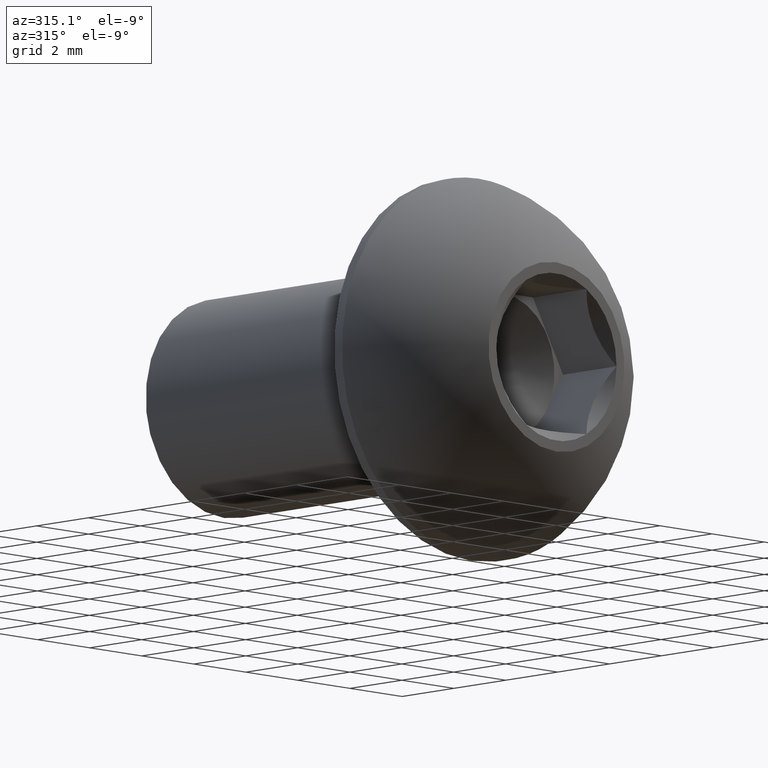
[diagram: clean part render]
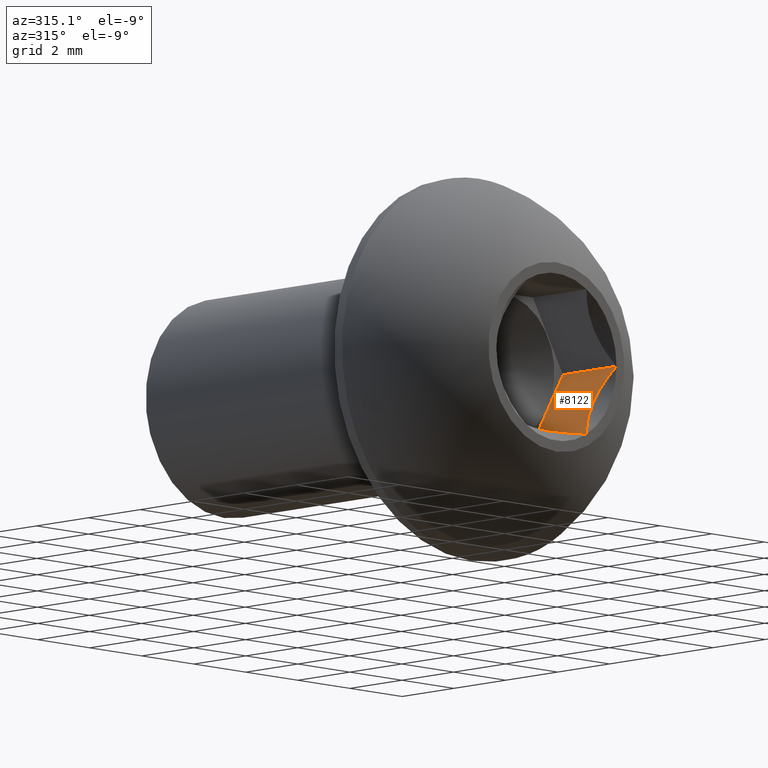
[diagram: same view with one face highlighted and labeled with its STEP entity id]
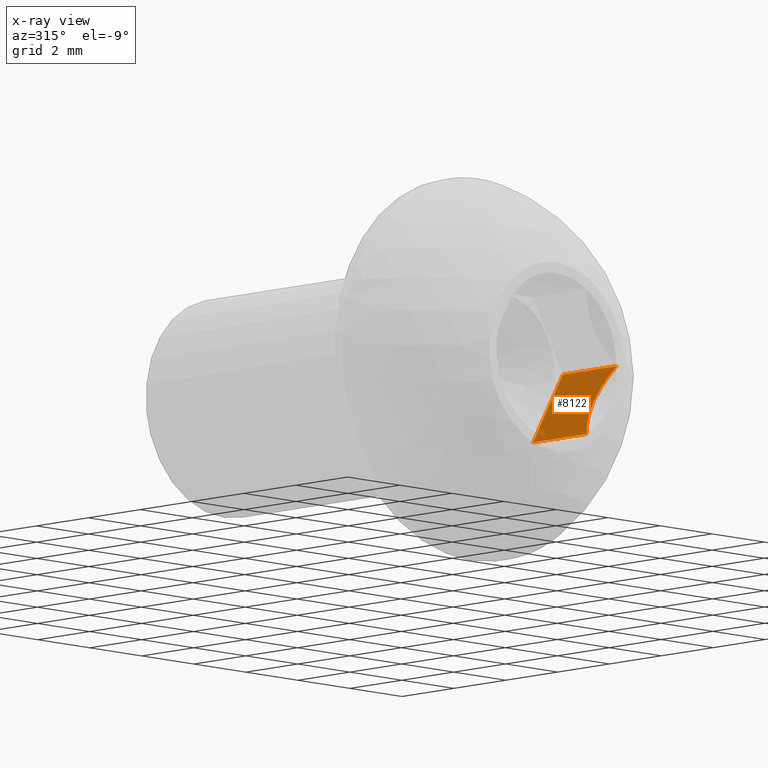
[diagram: x-ray of the same camera — body ghosted, the highlighted face saturated]
A machine part, auxiliary view. The second image highlights one B-rep face of the part: STEP entity #8122.
The next image is the same camera in x-ray: the body ghosted, the highlighted face saturated — about 4% of this face is hidden behind the body in this view.
In plain terms, the highlighted planar face has unit normal (0.866, 0, -0.5).
Its self-contained STEP definition (entity closure, byte-faithful):
#650 = DIRECTION ( 'NONE',  ( 0.4999999999999977800, 0.0000000000000000000, 0.8660254037844398200 ) ) ;
#826 = FACE_OUTER_BOUND ( 'NONE', #2773, .T. ) ;
#1128 = CARTESIAN_POINT ( 'NONE',  ( 1.534293179749486300, 0.2792985613756313000, -1.342526258967445400 ) ) ;
#1404 = VECTOR ( 'NONE', #650, 1000.000000000000100 ) ;
#1446 = DIRECTION ( 'NONE',  ( 0.0000000000000000000, -1.000000000000000000, 0.0000000000000000000 ) ) ;
#1740 = CARTESIAN_POINT ( 'NONE',  ( 1.154700538379232100, 2.062499999999999600, -2.000000000000000900 ) ) ;
#1785 = CARTESIAN_POINT ( 'NONE',  ( 1.154700538379232100, 2.062499999999999600, -2.000000000000000900 ) ) ;
#2220 = ORIENTED_EDGE ( 'NONE', *, *, #11455, .F. ) ;
#2773 = EDGE_LOOP ( 'NONE', ( #8328, #2220, #11820, #4454 ) ) ;
#4454 = ORIENTED_EDGE ( 'NONE', *, *, #8011, .F. ) ;
#4748 = LINE ( 'NONE', #5006, #11887 ) ;
#5006 = CARTESIAN_POINT ( 'NONE',  ( 2.309401076758477200, 2.062499999999999600, -4.329725882211680000E-016 ) ) ;
#5521 = LINE ( 'NONE', #1785, #1404 ) ;
#5946 = CARTESIAN_POINT ( 'NONE',  ( 1.633374704908074700, 0.3098252479567656400, -1.170912023301353700 ) ) ;
#6492 = VERTEX_POINT ( 'NONE', #15311 ) ;
#6830 = CARTESIAN_POINT ( 'NONE',  ( 1.154700538379232100, 2.062499999999999600, -2.000000000000000900 ) ) ;
#7799 = DIRECTION ( 'NONE',  ( -0.4999999999999977200, 0.0000000000000000000, -0.8660254037844398200 ) ) ;
#8011 = EDGE_CURVE ( 'NONE', #6492, #9754, #12391, .T. ) ;
#8122 = ADVANCED_FACE ( 'NONE', ( #826 ), #10172, .F. ) ;
#8240 = CARTESIAN_POINT ( 'NONE',  ( 2.309401076758477200, 2.062499999999999600, -4.329725882211680000E-016 ) ) ;
#8285 = CARTESIAN_POINT ( 'NONE',  ( 1.835708118644007200, 0.3010809727709111700, -0.8204602706418642200 ) ) ;
#8328 = ORIENTED_EDGE ( 'NONE', *, *, #12441, .F. ) ;
#8490 = CARTESIAN_POINT ( 'NONE',  ( 2.309401076758477200, 0.0000000000000000000, -4.329725882211680000E-016 ) ) ;
#8704 = EDGE_CURVE ( 'NONE', #13562, #9754, #9234, .T. ) ;
#8869 = CARTESIAN_POINT ( 'NONE',  ( 1.154700538379223500, 0.0000000000000000000, -2.000000000000016000 ) ) ;
#9234 = LINE ( 'NONE', #11869, #14361 ) ;
#9486 = CARTESIAN_POINT ( 'NONE',  ( 1.245451299245582200, 0.09075076086680117200, -1.842815071353949100 ) ) ;
#9754 = VERTEX_POINT ( 'NONE', #8869 ) ;
#10172 = PLANE ( 'NONE',  #15454 ) ;
#10754 = CARTESIAN_POINT ( 'NONE',  ( 2.219182151635831400, 0.09021892512267321000, -0.1562637621166766400 ) ) ;
#11455 = EDGE_CURVE ( 'NONE', #13562, #13701, #5521, .T. ) ;
#11820 = ORIENTED_EDGE ( 'NONE', *, *, #8704, .T. ) ;
#11869 = CARTESIAN_POINT ( 'NONE',  ( 1.154700538379232100, 2.062499999999999600, -2.000000000000000900 ) ) ;
#11887 = VECTOR ( 'NONE', #1446, 1000.000000000000000 ) ;
#11921 = DIRECTION ( 'NONE',  ( 0.0000000000000000000, -1.000000000000000000, 0.0000000000000000000 ) ) ;
#11925 = CARTESIAN_POINT ( 'NONE',  ( 1.154700538379223500, 0.0000000000000000000, -2.000000000000016000 ) ) ;
#11978 = CARTESIAN_POINT ( 'NONE',  ( 1.784578465267425000, 0.3091822087746347600, -0.9090194280634901200 ) ) ;
#12391 = B_SPLINE_CURVE_WITH_KNOTS ( 'NONE', 3,
 ( #8490, #10754, #14521, #14311, #15523, #8285, #11978, #5946, #1128, #14366, #9486, #11925 ),
 .UNSPECIFIED., .F., .F.,
 ( 4, 2, 2, 2, 2, 4 ),
 ( 2.544349856170600700E-007, 0.0005966331004600517900, 0.0008948224331972693800, 0.001193011765934487200, 0.001789390431408922300, 0.002385769096883357500 ),
 .UNSPECIFIED. ) ;
#12441 = EDGE_CURVE ( 'NONE', #13701, #6492, #4748, .T. ) ;
#13562 = VERTEX_POINT ( 'NONE', #6830 ) ;
#13701 = VERTEX_POINT ( 'NONE', #8240 ) ;
#14311 = CARTESIAN_POINT ( 'NONE',  ( 1.983596481850121700, 0.2491289938367703100, -0.5643101117206726900 ) ) ;
#14361 = VECTOR ( 'NONE', #11921, 1000.000000000000000 ) ;
#14366 = CARTESIAN_POINT ( 'NONE',  ( 1.338892124838637200, 0.1685650473658849000, -1.680970813925594300 ) ) ;
#14521 = CARTESIAN_POINT ( 'NONE',  ( 2.126928016055928500, 0.1669275899206298700, -0.3160526121494167100 ) ) ;
#14940 = DIRECTION ( 'NONE',  ( 0.8660254037844399300, 0.0000000000000000000, -0.4999999999999977800 ) ) ;
#15311 = CARTESIAN_POINT ( 'NONE',  ( 2.309401076758477200, 0.0000000000000000000, -4.329725882211680000E-016 ) ) ;
#15454 = AXIS2_PLACEMENT_3D ( 'NONE', #1740, #14940, #7799 ) ;
#15523 = CARTESIAN_POINT ( 'NONE',  ( 1.934985545853182200, 0.2709947582014008400, -0.6485067226708510800 ) ) ;